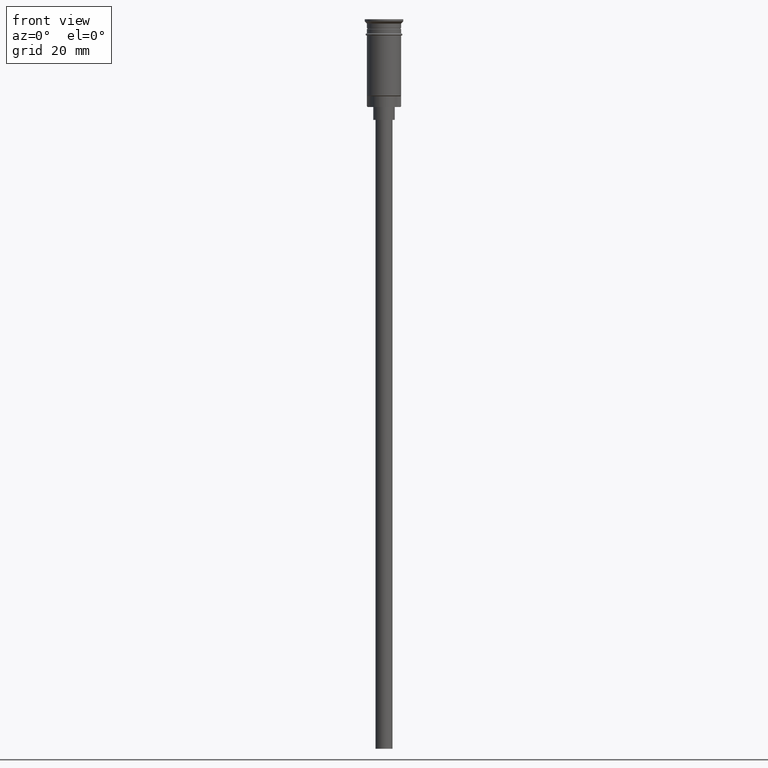
[diagram: clean part render]
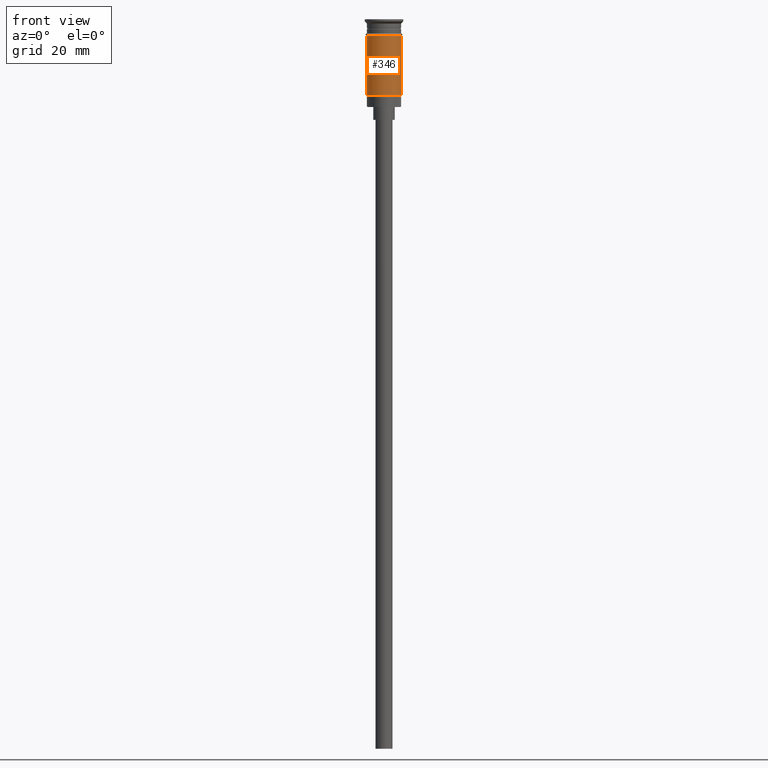
[diagram: same view with one face highlighted and labeled with its STEP entity id]
A machine part, front view. The second image highlights one B-rep face of the part: STEP entity #346.
In plain terms, the highlighted cylindrical surface (edge-blend (fillet) strip) has radius 4 mm, axis along (-0, -0, 1).
Its self-contained STEP definition (entity closure, byte-faithful):
#8 = VECTOR ( 'NONE', #547, 1000.000000000000000 ) ;
#45 = EDGE_CURVE ( 'NONE', #760, #1393, #1230, .T. ) ;
#65 = CARTESIAN_POINT ( 'NONE',  ( 4.000000000000000000, 0.000000000000000000, 0.000000000000000000 ) ) ;
#90 = DIRECTION ( 'NONE',  ( -1.000000000000000000, 0.000000000000000000, 0.000000000000000000 ) ) ;
#119 = CARTESIAN_POINT ( 'NONE',  ( -4.000000000000000000, 4.898587196589412829E-16, 0.000000000000000000 ) ) ;
#157 = CIRCLE ( 'NONE', #1509, 4.000000000000000000 ) ;
#180 = DIRECTION ( 'NONE',  ( -0.000000000000000000, -0.000000000000000000, 1.000000000000000000 ) ) ;
#189 = CYLINDRICAL_SURFACE ( 'NONE', #873, 4.000000000000000000 ) ;
#281 = EDGE_CURVE ( 'NONE', #760, #916, #157, .T. ) ;
#323 = CARTESIAN_POINT ( 'NONE',  ( 0.000000000000000000, 0.000000000000000000, 0.000000000000000000 ) ) ;
#346 = ADVANCED_FACE ( 'NONE', ( #1442 ), #189, .T. ) ;
#364 = DIRECTION ( 'NONE',  ( -0.000000000000000000, -0.000000000000000000, 1.000000000000000000 ) ) ;
#407 = CARTESIAN_POINT ( 'NONE',  ( 4.000000000000000000, 0.000000000000000000, -3.799999999999998490 ) ) ;
#508 = CARTESIAN_POINT ( 'NONE',  ( 0.000000000000000000, 0.000000000000000000, -3.799999999999998490 ) ) ;
#536 = DIRECTION ( 'NONE',  ( -0.000000000000000000, -0.000000000000000000, 1.000000000000000000 ) ) ;
#547 = DIRECTION ( 'NONE',  ( -0.000000000000000000, -0.000000000000000000, 1.000000000000000000 ) ) ;
#677 = VERTEX_POINT ( 'NONE', #407 ) ;
#760 = VERTEX_POINT ( 'NONE', #1506 ) ;
#775 = AXIS2_PLACEMENT_3D ( 'NONE', #508, #364, #1014 ) ;
#873 = AXIS2_PLACEMENT_3D ( 'NONE', #323, #1164, #1416 ) ;
#894 = CARTESIAN_POINT ( 'NONE',  ( 4.000000000000000000, 4.898587196589412829E-16, -17.79999999999998295 ) ) ;
#911 = EDGE_LOOP ( 'NONE', ( #1047, #1099, #1205, #1107 ) ) ;
#916 = VERTEX_POINT ( 'NONE', #894 ) ;
#919 = LINE ( 'NONE', #65, #8 ) ;
#972 = EDGE_CURVE ( 'NONE', #916, #677, #919, .T. ) ;
#1014 = DIRECTION ( 'NONE',  ( 1.000000000000000000, 0.000000000000000000, 0.000000000000000000 ) ) ;
#1045 = CARTESIAN_POINT ( 'NONE',  ( 0.000000000000000000, 0.000000000000000000, -17.79999999999998295 ) ) ;
#1047 = ORIENTED_EDGE ( 'NONE', *, *, #45, .F. ) ;
#1099 = ORIENTED_EDGE ( 'NONE', *, *, #281, .T. ) ;
#1107 = ORIENTED_EDGE ( 'NONE', *, *, #1417, .F. ) ;
#1164 = DIRECTION ( 'NONE',  ( -0.000000000000000000, -0.000000000000000000, 1.000000000000000000 ) ) ;
#1205 = ORIENTED_EDGE ( 'NONE', *, *, #972, .T. ) ;
#1230 = LINE ( 'NONE', #119, #1425 ) ;
#1251 = CARTESIAN_POINT ( 'NONE',  ( -4.000000000000000000, 4.898587196589412829E-16, -3.799999999999998490 ) ) ;
#1393 = VERTEX_POINT ( 'NONE', #1251 ) ;
#1416 = DIRECTION ( 'NONE',  ( 1.000000000000000000, 0.000000000000000000, 0.000000000000000000 ) ) ;
#1417 = EDGE_CURVE ( 'NONE', #1393, #677, #1487, .T. ) ;
#1425 = VECTOR ( 'NONE', #536, 1000.000000000000000 ) ;
#1442 = FACE_OUTER_BOUND ( 'NONE', #911, .T. ) ;
#1487 = CIRCLE ( 'NONE', #775, 4.000000000000000000 ) ;
#1506 = CARTESIAN_POINT ( 'NONE',  ( -3.999999999999997335, 0.000000000000000000, -17.79999999999998295 ) ) ;
#1509 = AXIS2_PLACEMENT_3D ( 'NONE', #1045, #180, #90 ) ;